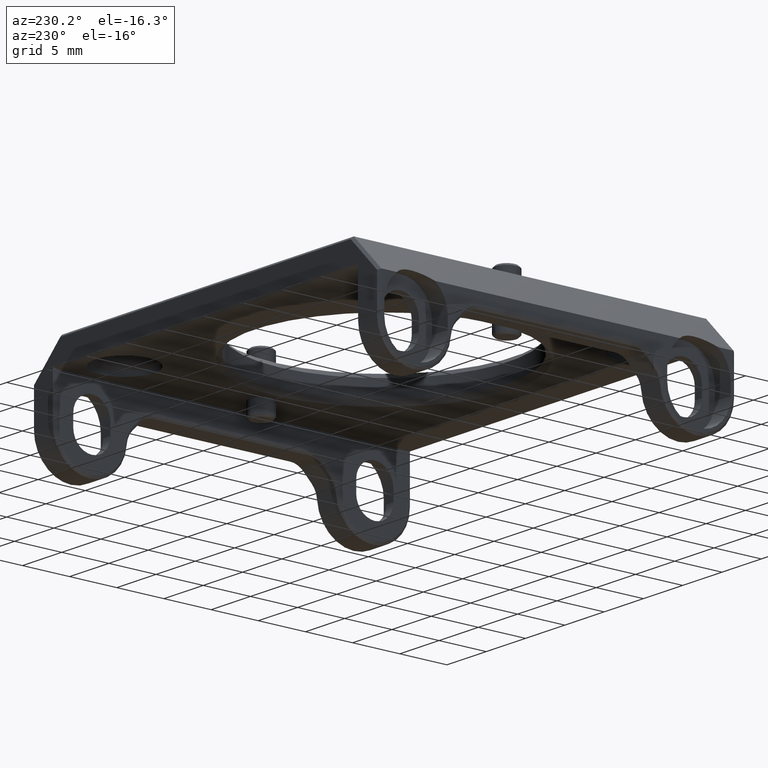
[diagram: clean part render]
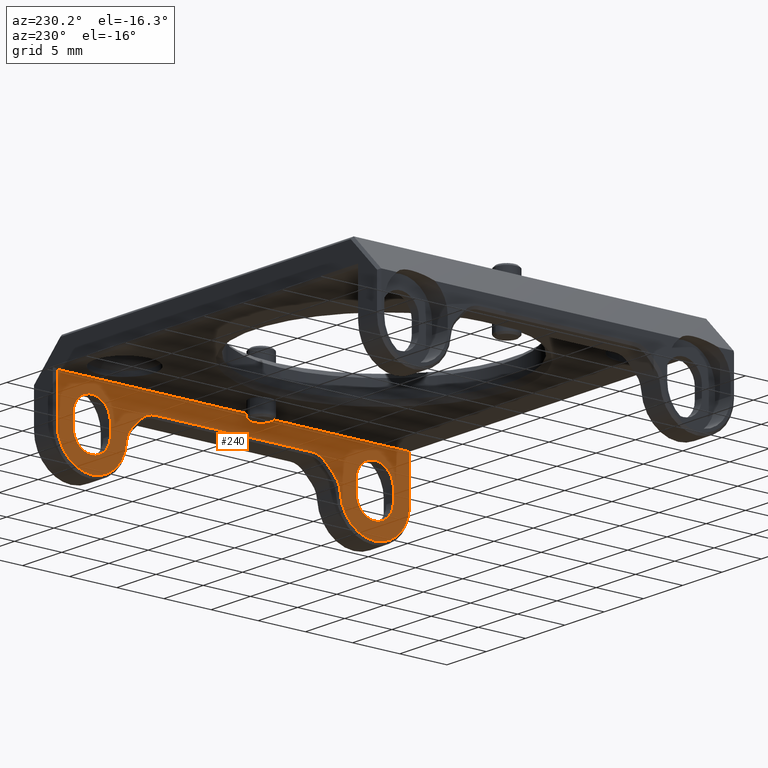
[diagram: same view with one face highlighted and labeled with its STEP entity id]
A machine part, auxiliary view. The second image highlights one B-rep face of the part: STEP entity #240.
In plain terms, the highlighted planar face has unit normal (1, -0, 0).
Its self-contained STEP definition (entity closure, byte-faithful):
#23 = DIRECTION ( 'NONE',  ( 0.000000000000000000, -0.7071067811865512365, 0.7071067811865439090 ) ) ;
#66 = EDGE_CURVE ( 'NONE', #208, #4974, #75, .T. ) ;
#75 = CIRCLE ( 'NONE', #6798, 1.969999999999997753 ) ;
#175 = DIRECTION ( 'NONE',  ( 1.000000000000000000, -0.000000000000000000, 0.000000000000000000 ) ) ;
#189 = ORIENTED_EDGE ( 'NONE', *, *, #808, .T. ) ;
#208 = VERTEX_POINT ( 'NONE', #685 ) ;
#229 = EDGE_CURVE ( 'NONE', #2915, #800, #5354, .T. ) ;
#240 = ADVANCED_FACE ( 'NONE', ( #3813, #3910, #5443 ), #4198, .F. ) ;
#260 = VERTEX_POINT ( 'NONE', #3060 ) ;
#299 = CARTESIAN_POINT ( 'NONE',  ( 19.17500000000000071, -8.246572875253818324, -1.959999999999996412 ) ) ;
#457 = DIRECTION ( 'NONE',  ( -1.000000000000000000, 0.000000000000000000, -0.000000000000000000 ) ) ;
#462 = EDGE_CURVE ( 'NONE', #800, #5488, #6496, .T. ) ;
#465 = CIRCLE ( 'NONE', #989, 3.674999999999996714 ) ;
#520 = VERTEX_POINT ( 'NONE', #3411 ) ;
#543 = CIRCLE ( 'NONE', #6837, 2.250000000000002665 ) ;
#567 = EDGE_CURVE ( 'NONE', #5852, #6368, #2457, .T. ) ;
#579 = VECTOR ( 'NONE', #5854, 1000.000000000000000 ) ;
#582 = CARTESIAN_POINT ( 'NONE',  ( 19.17500000000000071, -14.99999999999999645, -4.604999999999990656 ) ) ;
#593 = DIRECTION ( 'NONE',  ( 0.000000000000000000, -1.000000000000000000, 0.000000000000000000 ) ) ;
#606 = LINE ( 'NONE', #3848, #4439 ) ;
#625 = CARTESIAN_POINT ( 'NONE',  ( 19.17500000000000071, 18.92500000000000071, -1.959999999999996412 ) ) ;
#658 = AXIS2_PLACEMENT_3D ( 'NONE', #3919, #6811, #1118 ) ;
#685 = CARTESIAN_POINT ( 'NONE',  ( 19.17500000000000071, 14.99999999999999645, -6.574999999999990408 ) ) ;
#698 = ORIENTED_EDGE ( 'NONE', *, *, #567, .F. ) ;
#737 = CARTESIAN_POINT ( 'NONE',  ( 19.17500000000000071, 5.853223304703206509, 13.07177669529666630 ) ) ;
#762 = CARTESIAN_POINT ( 'NONE',  ( 19.17500000000000071, 18.92500000000000071, 7.246847433954463752E-15 ) ) ;
#800 = VERTEX_POINT ( 'NONE', #3812 ) ;
#801 = VECTOR ( 'NONE', #23, 1000.000000000000000 ) ;
#808 = EDGE_CURVE ( 'NONE', #4974, #3288, #5620, .T. ) ;
#836 = DIRECTION ( 'NONE',  ( 1.000000000000000000, -0.000000000000000000, 0.000000000000000000 ) ) ;
#847 = AXIS2_PLACEMENT_3D ( 'NONE', #2342, #2899, #3489 ) ;
#850 = EDGE_CURVE ( 'NONE', #4531, #3615, #2537, .T. ) ;
#908 = LINE ( 'NONE', #737, #6808 ) ;
#945 = VECTOR ( 'NONE', #2853, 1000.000000000000000 ) ;
#962 = DIRECTION ( 'NONE',  ( -0.000000000000000000, 0.000000000000000000, 1.000000000000000000 ) ) ;
#989 = AXIS2_PLACEMENT_3D ( 'NONE', #7319, #457, #1036 ) ;
#1036 = DIRECTION ( 'NONE',  ( 0.000000000000000000, 0.000000000000000000, -1.000000000000000000 ) ) ;
#1042 = CARTESIAN_POINT ( 'NONE',  ( 19.17500000000000071, -18.67500000000000071, 7.246847433954463752E-15 ) ) ;
#1054 = DIRECTION ( 'NONE',  ( 0.000000000000000000, 0.000000000000000000, -1.000000000000000000 ) ) ;
#1104 = VERTEX_POINT ( 'NONE', #5784 ) ;
#1118 = DIRECTION ( 'NONE',  ( 0.000000000000000000, 0.000000000000000000, -1.000000000000000000 ) ) ;
#1140 = DIRECTION ( 'NONE',  ( 0.000000000000000000, 0.000000000000000000, -1.000000000000000000 ) ) ;
#1181 = CIRCLE ( 'NONE', #5063, 1.969999999999997753 ) ;
#1199 = DIRECTION ( 'NONE',  ( 1.000000000000000000, -0.000000000000000000, 0.000000000000000000 ) ) ;
#1250 = VERTEX_POINT ( 'NONE', #3677 ) ;
#1256 = EDGE_LOOP ( 'NONE', ( #6372, #5442, #1423, #3936, #2193 ) ) ;
#1288 = CARTESIAN_POINT ( 'NONE',  ( 19.17500000000000071, 9.837563132923515141, -2.619009742330256518 ) ) ;
#1423 = ORIENTED_EDGE ( 'NONE', *, *, #4580, .T. ) ;
#1492 = VECTOR ( 'NONE', #3334, 1000.000000000000000 ) ;
#1516 = CARTESIAN_POINT ( 'NONE',  ( 19.17500000000000071, 18.67500000000000071, 7.246847433954463752E-15 ) ) ;
#1523 = CARTESIAN_POINT ( 'NONE',  ( 19.17500000000000071, 11.33564224990188940, -4.884476795630547485 ) ) ;
#1551 = EDGE_CURVE ( 'NONE', #4647, #7272, #2416, .T. ) ;
#1563 = ORIENTED_EDGE ( 'NONE', *, *, #7426, .T. ) ;
#1602 = DIRECTION ( 'NONE',  ( 0.000000000000000000, 0.000000000000000000, 1.000000000000000000 ) ) ;
#1610 = EDGE_CURVE ( 'NONE', #5771, #3247, #5672, .T. ) ;
#1615 = DIRECTION ( 'NONE',  ( -1.000000000000000000, 0.000000000000000000, -0.000000000000000000 ) ) ;
#1655 = DIRECTION ( 'NONE',  ( 1.000000000000000000, -0.000000000000000000, 0.000000000000000000 ) ) ;
#1708 = EDGE_CURVE ( 'NONE', #1104, #7121, #3920, .T. ) ;
#1824 = CARTESIAN_POINT ( 'NONE',  ( 19.17500000000000071, -8.246572875253818324, -4.209999999999996412 ) ) ;
#1858 = EDGE_CURVE ( 'NONE', #3481, #3085, #3912, .T. ) ;
#1870 = EDGE_CURVE ( 'NONE', #7121, #208, #4090, .T. ) ;
#1930 = DIRECTION ( 'NONE',  ( 0.000000000000000000, 0.000000000000000000, -1.000000000000000000 ) ) ;
#2074 = CIRCLE ( 'NONE', #3784, 1.969999999999997753 ) ;
#2090 = ORIENTED_EDGE ( 'NONE', *, *, #229, .T. ) ;
#2094 = LINE ( 'NONE', #4685, #579 ) ;
#2127 = CARTESIAN_POINT ( 'NONE',  ( 19.17500000000000071, 14.99999999999999645, -4.604999999999992433 ) ) ;
#2139 = DIRECTION ( 'NONE',  ( 1.000000000000000000, -0.000000000000000000, 0.000000000000000000 ) ) ;
#2193 = ORIENTED_EDGE ( 'NONE', *, *, #5172, .T. ) ;
#2235 = CARTESIAN_POINT ( 'NONE',  ( 19.17500000000000071, 10.68314817077685319, -3.464594780183592349 ) ) ;
#2292 = CARTESIAN_POINT ( 'NONE',  ( 19.17500000000000071, 18.92500000000000071, 7.246847433954463752E-15 ) ) ;
#2311 = ORIENTED_EDGE ( 'NONE', *, *, #2362, .T. ) ;
#2342 = CARTESIAN_POINT ( 'NONE',  ( 19.17500000000000071, 9.092157913107124401, -5.055585037853334462 ) ) ;
#2362 = EDGE_CURVE ( 'NONE', #1250, #260, #6735, .T. ) ;
#2396 = DIRECTION ( 'NONE',  ( 1.000000000000000000, -0.000000000000000000, 0.000000000000000000 ) ) ;
#2416 = CIRCLE ( 'NONE', #5303, 1.969999999999998197 ) ;
#2429 = ORIENTED_EDGE ( 'NONE', *, *, #3899, .T. ) ;
#2457 = LINE ( 'NONE', #2292, #945 ) ;
#2459 = VECTOR ( 'NONE', #962, 1000.000000000000000 ) ;
#2485 = LINE ( 'NONE', #4047, #801 ) ;
#2537 = CIRCLE ( 'NONE', #6964, 1.969999999999997753 ) ;
#2543 = ORIENTED_EDGE ( 'NONE', *, *, #1610, .T. ) ;
#2552 = VECTOR ( 'NONE', #4929, 1000.000000000000000 ) ;
#2607 = CARTESIAN_POINT ( 'NONE',  ( 19.17500000000000071, -13.02999999999999936, -3.395000000000000906 ) ) ;
#2635 = CARTESIAN_POINT ( 'NONE',  ( 19.17500000000000071, 16.96999999999999531, 7.246847433954463752E-15 ) ) ;
#2644 = VECTOR ( 'NONE', #1602, 1000.000000000000000 ) ;
#2667 = EDGE_CURVE ( 'NONE', #260, #4723, #465, .T. ) ;
#2675 = DIRECTION ( 'NONE',  ( -1.000000000000000000, 0.000000000000000000, -0.000000000000000000 ) ) ;
#2755 = VERTEX_POINT ( 'NONE', #5140 ) ;
#2837 = CARTESIAN_POINT ( 'NONE',  ( 19.17500000000000071, 18.67499999999999361, -4.604999999999992433 ) ) ;
#2843 = EDGE_CURVE ( 'NONE', #2755, #520, #908, .T. ) ;
#2853 = DIRECTION ( 'NONE',  ( -0.000000000000000000, -1.000000000000000000, -0.000000000000000000 ) ) ;
#2883 = EDGE_CURVE ( 'NONE', #5488, #2755, #543, .T. ) ;
#2899 = DIRECTION ( 'NONE',  ( 1.000000000000000000, -0.000000000000000000, 0.000000000000000000 ) ) ;
#2915 = VERTEX_POINT ( 'NONE', #1288 ) ;
#2929 = ORIENTED_EDGE ( 'NONE', *, *, #1870, .T. ) ;
#2964 = ORIENTED_EDGE ( 'NONE', *, *, #4764, .T. ) ;
#3060 = CARTESIAN_POINT ( 'NONE',  ( 19.17500000000000071, -14.99999999999999645, -8.279999999999988702 ) ) ;
#3085 = VERTEX_POINT ( 'NONE', #2235 ) ;
#3130 = ORIENTED_EDGE ( 'NONE', *, *, #66, .T. ) ;
#3247 = VERTEX_POINT ( 'NONE', #4687 ) ;
#3288 = VERTEX_POINT ( 'NONE', #3676 ) ;
#3334 = DIRECTION ( 'NONE',  ( 0.000000000000000000, 0.000000000000000000, -1.000000000000000000 ) ) ;
#3342 = CARTESIAN_POINT ( 'NONE',  ( 19.17500000000000071, -9.092157913107122624, -5.055585037853321140 ) ) ;
#3386 = DIRECTION ( 'NONE',  ( 0.000000000000000000, 0.000000000000000000, -1.000000000000000000 ) ) ;
#3391 = ORIENTED_EDGE ( 'NONE', *, *, #2883, .T. ) ;
#3411 = CARTESIAN_POINT ( 'NONE',  ( 19.17500000000000071, -10.68314817077687273, -3.464594780183586575 ) ) ;
#3481 = VERTEX_POINT ( 'NONE', #1523 ) ;
#3489 = DIRECTION ( 'NONE',  ( 0.000000000000000000, 0.000000000000000000, -1.000000000000000000 ) ) ;
#3561 = CARTESIAN_POINT ( 'NONE',  ( 19.17500000000000071, 18.67500000000000071, 7.246847433954463752E-15 ) ) ;
#3591 = CARTESIAN_POINT ( 'NONE',  ( 19.17500000000000071, -14.99999999999999645, -3.395000000000003570 ) ) ;
#3615 = VERTEX_POINT ( 'NONE', #4574 ) ;
#3676 = CARTESIAN_POINT ( 'NONE',  ( 19.17500000000000071, 16.96999999999999531, -3.394999999999992024 ) ) ;
#3677 = CARTESIAN_POINT ( 'NONE',  ( 19.17500000000000071, -11.33564224990188762, -4.884476795630537715 ) ) ;
#3695 = CARTESIAN_POINT ( 'NONE',  ( 19.17500000000000071, -18.67500000000000071, 7.246847433954463752E-15 ) ) ;
#3751 = CARTESIAN_POINT ( 'NONE',  ( 19.17500000000000071, -16.96999999999999531, -3.395000000000000462 ) ) ;
#3759 = DIRECTION ( 'NONE',  ( 1.000000000000000000, -0.000000000000000000, 0.000000000000000000 ) ) ;
#3784 = AXIS2_PLACEMENT_3D ( 'NONE', #582, #6892, #3963 ) ;
#3812 = CARTESIAN_POINT ( 'NONE',  ( 19.17500000000000071, 8.246572875253789903, -1.959999999999994191 ) ) ;
#3813 = FACE_BOUND ( 'NONE', #7124, .T. ) ;
#3821 = DIRECTION ( 'NONE',  ( -0.000000000000000000, 0.000000000000000000, 1.000000000000000000 ) ) ;
#3839 = DIRECTION ( 'NONE',  ( 0.000000000000000000, 0.000000000000000000, -1.000000000000000000 ) ) ;
#3848 = CARTESIAN_POINT ( 'NONE',  ( 19.17500000000000071, -13.02999999999999581, 7.246847433954463752E-15 ) ) ;
#3867 = EDGE_CURVE ( 'NONE', #5869, #4647, #606, .T. ) ;
#3899 = EDGE_CURVE ( 'NONE', #5852, #5771, #6169, .T. ) ;
#3901 = AXIS2_PLACEMENT_3D ( 'NONE', #4616, #1199, #4166 ) ;
#3910 = FACE_BOUND ( 'NONE', #1256, .T. ) ;
#3912 = CIRCLE ( 'NONE', #847, 2.250000000000003553 ) ;
#3919 = CARTESIAN_POINT ( 'NONE',  ( 19.17500000000000071, -14.99999999999999645, -4.604999999999991545 ) ) ;
#3920 = LINE ( 'NONE', #5085, #1492 ) ;
#3936 = ORIENTED_EDGE ( 'NONE', *, *, #850, .T. ) ;
#3963 = DIRECTION ( 'NONE',  ( 0.000000000000000000, 0.000000000000000000, -1.000000000000000000 ) ) ;
#4047 = CARTESIAN_POINT ( 'NONE',  ( 19.17500000000000071, 13.07177669529667163, -5.853223304703382368 ) ) ;
#4090 = CIRCLE ( 'NONE', #3901, 1.969999999999997753 ) ;
#4166 = DIRECTION ( 'NONE',  ( 0.000000000000000000, 0.000000000000000000, -1.000000000000000000 ) ) ;
#4198 = PLANE ( 'NONE',  #6336 ) ;
#4310 = AXIS2_PLACEMENT_3D ( 'NONE', #2127, #2675, #7339 ) ;
#4337 = DIRECTION ( 'NONE',  ( 0.000000000000000000, 0.000000000000000000, -1.000000000000000000 ) ) ;
#4438 = CARTESIAN_POINT ( 'NONE',  ( 19.17500000000000071, 14.99999999999999645, -4.604999999999992433 ) ) ;
#4439 = VECTOR ( 'NONE', #3821, 1000.000000000000000 ) ;
#4453 = CARTESIAN_POINT ( 'NONE',  ( 19.17500000000000071, -18.67499999999999361, -4.604999999999992433 ) ) ;
#4518 = AXIS2_PLACEMENT_3D ( 'NONE', #6288, #1615, #3386 ) ;
#4531 = VERTEX_POINT ( 'NONE', #6938 ) ;
#4574 = CARTESIAN_POINT ( 'NONE',  ( 19.17500000000000071, -14.99999999999999645, -6.574999999999988631 ) ) ;
#4580 = EDGE_CURVE ( 'NONE', #7272, #4531, #2094, .T. ) ;
#4616 = CARTESIAN_POINT ( 'NONE',  ( 19.17500000000000071, 14.99999999999999645, -4.604999999999992433 ) ) ;
#4647 = VERTEX_POINT ( 'NONE', #2607 ) ;
#4674 = CARTESIAN_POINT ( 'NONE',  ( 19.17500000000000071, -13.02999999999999758, -4.604999999999992433 ) ) ;
#4685 = CARTESIAN_POINT ( 'NONE',  ( 19.17500000000000071, -16.96999999999999531, 7.246847433954463752E-15 ) ) ;
#4687 = CARTESIAN_POINT ( 'NONE',  ( 19.17500000000000071, 14.99999999999999645, -8.279999999999990479 ) ) ;
#4723 = VERTEX_POINT ( 'NONE', #4453 ) ;
#4743 = CARTESIAN_POINT ( 'NONE',  ( 19.17500000000000071, 16.96999999999999531, -4.604999999999993321 ) ) ;
#4764 = EDGE_CURVE ( 'NONE', #3247, #3481, #6652, .T. ) ;
#4783 = AXIS2_PLACEMENT_3D ( 'NONE', #6525, #5415, #7109 ) ;
#4831 = DIRECTION ( 'NONE',  ( 0.000000000000000000, 0.000000000000000000, -1.000000000000000000 ) ) ;
#4923 = CARTESIAN_POINT ( 'NONE',  ( 19.17500000000000071, 15.00000000000000000, -3.394999999999993356 ) ) ;
#4929 = DIRECTION ( 'NONE',  ( 0.000000000000000000, 0.000000000000000000, -1.000000000000000000 ) ) ;
#4974 = VERTEX_POINT ( 'NONE', #4743 ) ;
#5063 = AXIS2_PLACEMENT_3D ( 'NONE', #4923, #3759, #4337 ) ;
#5069 = DIRECTION ( 'NONE',  ( 1.000000000000000000, -0.000000000000000000, 0.000000000000000000 ) ) ;
#5085 = CARTESIAN_POINT ( 'NONE',  ( 19.17500000000000071, 13.02999999999999936, 7.246847433954463752E-15 ) ) ;
#5111 = ORIENTED_EDGE ( 'NONE', *, *, #1858, .T. ) ;
#5126 = ORIENTED_EDGE ( 'NONE', *, *, #1708, .T. ) ;
#5140 = CARTESIAN_POINT ( 'NONE',  ( 19.17500000000000071, -9.837563132923559550, -2.619009742330270729 ) ) ;
#5172 = EDGE_CURVE ( 'NONE', #3615, #5869, #2074, .T. ) ;
#5303 = AXIS2_PLACEMENT_3D ( 'NONE', #3591, #175, #1930 ) ;
#5309 = ORIENTED_EDGE ( 'NONE', *, *, #5562, .T. ) ;
#5354 = CIRCLE ( 'NONE', #4783, 2.250000000000001776 ) ;
#5415 = DIRECTION ( 'NONE',  ( 1.000000000000000000, -0.000000000000000000, 0.000000000000000000 ) ) ;
#5442 = ORIENTED_EDGE ( 'NONE', *, *, #1551, .T. ) ;
#5443 = FACE_OUTER_BOUND ( 'NONE', #6171, .T. ) ;
#5488 = VERTEX_POINT ( 'NONE', #299 ) ;
#5533 = LINE ( 'NONE', #1042, #2644 ) ;
#5562 = EDGE_CURVE ( 'NONE', #520, #1250, #6278, .T. ) ;
#5620 = LINE ( 'NONE', #2635, #2459 ) ;
#5672 = CIRCLE ( 'NONE', #4518, 3.674999999999997602 ) ;
#5755 = EDGE_CURVE ( 'NONE', #3085, #2915, #2485, .T. ) ;
#5771 = VERTEX_POINT ( 'NONE', #2837 ) ;
#5784 = CARTESIAN_POINT ( 'NONE',  ( 19.17500000000000071, 13.02999999999999936, -3.395000000000000906 ) ) ;
#5852 = VERTEX_POINT ( 'NONE', #3561 ) ;
#5854 = DIRECTION ( 'NONE',  ( 0.000000000000000000, 0.000000000000000000, -1.000000000000000000 ) ) ;
#5869 = VERTEX_POINT ( 'NONE', #4674 ) ;
#5900 = DIRECTION ( 'NONE',  ( 0.000000000000000000, 0.000000000000000000, -1.000000000000000000 ) ) ;
#5998 = ORIENTED_EDGE ( 'NONE', *, *, #5755, .T. ) ;
#6022 = ORIENTED_EDGE ( 'NONE', *, *, #6738, .T. ) ;
#6169 = LINE ( 'NONE', #1516, #2552 ) ;
#6171 = EDGE_LOOP ( 'NONE', ( #2311, #6382, #1563, #698, #2429, #2543, #2964, #5111, #5998, #2090, #6177, #3391, #7035, #5309 ) ) ;
#6177 = ORIENTED_EDGE ( 'NONE', *, *, #462, .T. ) ;
#6183 = CARTESIAN_POINT ( 'NONE',  ( 19.17500000000000071, -14.99999999999999645, -4.604999999999990656 ) ) ;
#6278 = CIRCLE ( 'NONE', #6670, 2.250000000000002665 ) ;
#6288 = CARTESIAN_POINT ( 'NONE',  ( 19.17500000000000071, 14.99999999999999645, -4.604999999999992433 ) ) ;
#6336 = AXIS2_PLACEMENT_3D ( 'NONE', #762, #836, #4831 ) ;
#6368 = VERTEX_POINT ( 'NONE', #3695 ) ;
#6372 = ORIENTED_EDGE ( 'NONE', *, *, #3867, .T. ) ;
#6382 = ORIENTED_EDGE ( 'NONE', *, *, #2667, .T. ) ;
#6413 = VECTOR ( 'NONE', #593, 1000.000000000000000 ) ;
#6430 = CARTESIAN_POINT ( 'NONE',  ( 19.17500000000000071, 13.02999999999999936, -4.604999999999986215 ) ) ;
#6496 = LINE ( 'NONE', #625, #6413 ) ;
#6525 = CARTESIAN_POINT ( 'NONE',  ( 19.17500000000000071, 8.246572875253789903, -4.209999999999996412 ) ) ;
#6652 = CIRCLE ( 'NONE', #4310, 3.674999999999997602 ) ;
#6670 = AXIS2_PLACEMENT_3D ( 'NONE', #3342, #5069, #1054 ) ;
#6735 = CIRCLE ( 'NONE', #658, 3.674999999999996714 ) ;
#6738 = EDGE_CURVE ( 'NONE', #3288, #1104, #1181, .T. ) ;
#6798 = AXIS2_PLACEMENT_3D ( 'NONE', #4438, #2139, #3839 ) ;
#6808 = VECTOR ( 'NONE', #6933, 1000.000000000000000 ) ;
#6811 = DIRECTION ( 'NONE',  ( -1.000000000000000000, 0.000000000000000000, -0.000000000000000000 ) ) ;
#6837 = AXIS2_PLACEMENT_3D ( 'NONE', #1824, #2396, #5900 ) ;
#6892 = DIRECTION ( 'NONE',  ( 1.000000000000000000, -0.000000000000000000, 0.000000000000000000 ) ) ;
#6933 = DIRECTION ( 'NONE',  ( 0.000000000000000000, -0.7071067811865439090, -0.7071067811865512365 ) ) ;
#6938 = CARTESIAN_POINT ( 'NONE',  ( 19.17500000000000071, -16.96999999999999531, -4.604999999999993321 ) ) ;
#6964 = AXIS2_PLACEMENT_3D ( 'NONE', #6183, #1655, #1140 ) ;
#7035 = ORIENTED_EDGE ( 'NONE', *, *, #2843, .T. ) ;
#7109 = DIRECTION ( 'NONE',  ( 0.000000000000000000, 0.000000000000000000, -1.000000000000000000 ) ) ;
#7121 = VERTEX_POINT ( 'NONE', #6430 ) ;
#7124 = EDGE_LOOP ( 'NONE', ( #189, #6022, #5126, #2929, #3130 ) ) ;
#7272 = VERTEX_POINT ( 'NONE', #3751 ) ;
#7319 = CARTESIAN_POINT ( 'NONE',  ( 19.17500000000000071, -14.99999999999999645, -4.604999999999991545 ) ) ;
#7339 = DIRECTION ( 'NONE',  ( 0.000000000000000000, 0.000000000000000000, -1.000000000000000000 ) ) ;
#7426 = EDGE_CURVE ( 'NONE', #4723, #6368, #5533, .T. ) ;